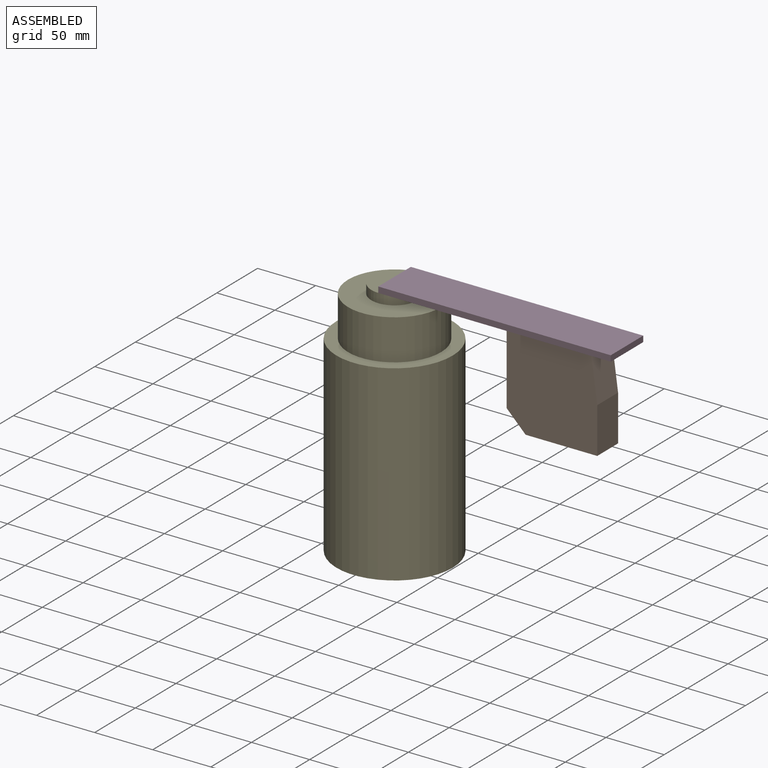
[diagram: assembled view]
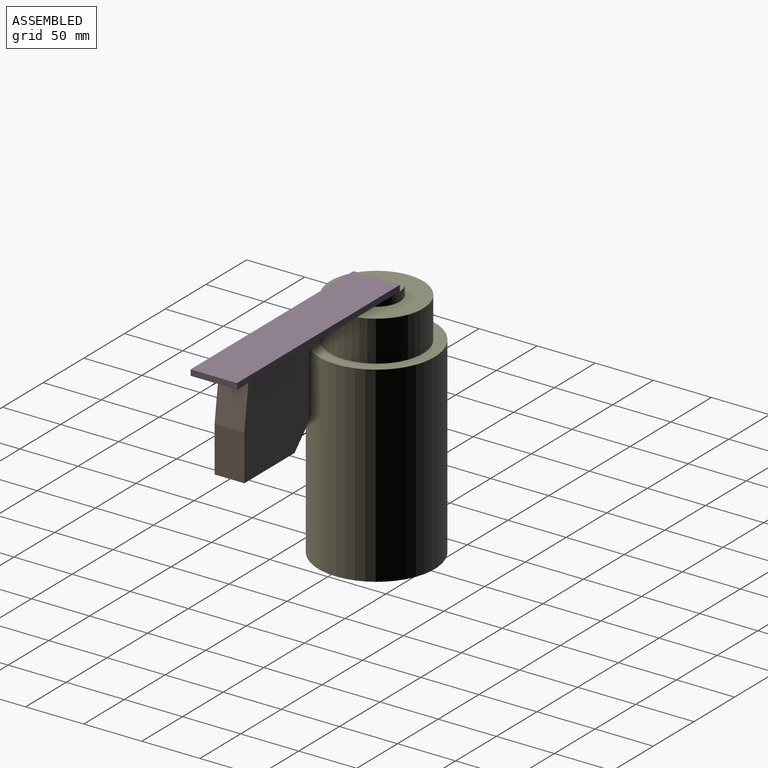
[diagram: assembled view, second angle]
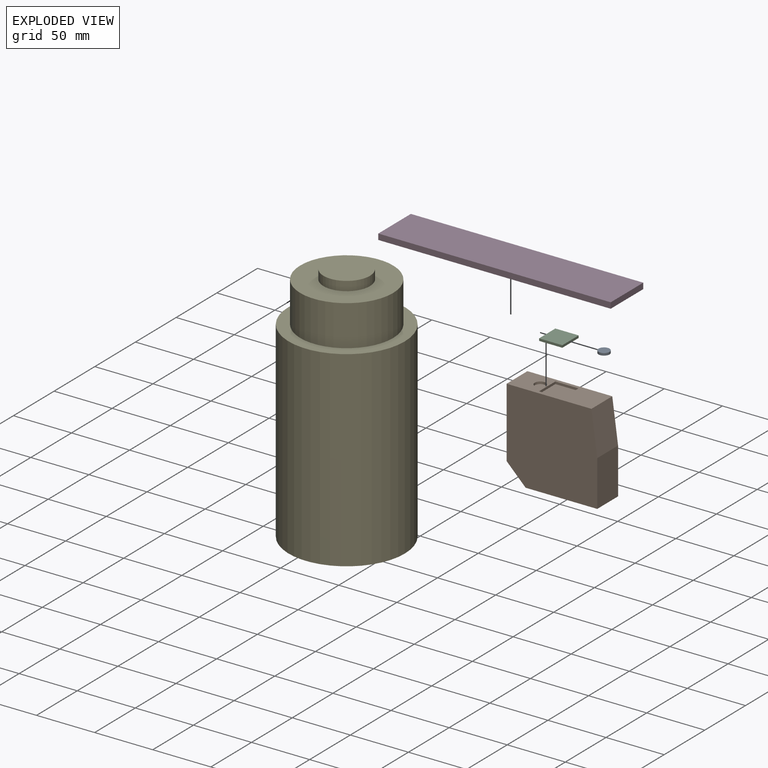
[diagram: exploded view]
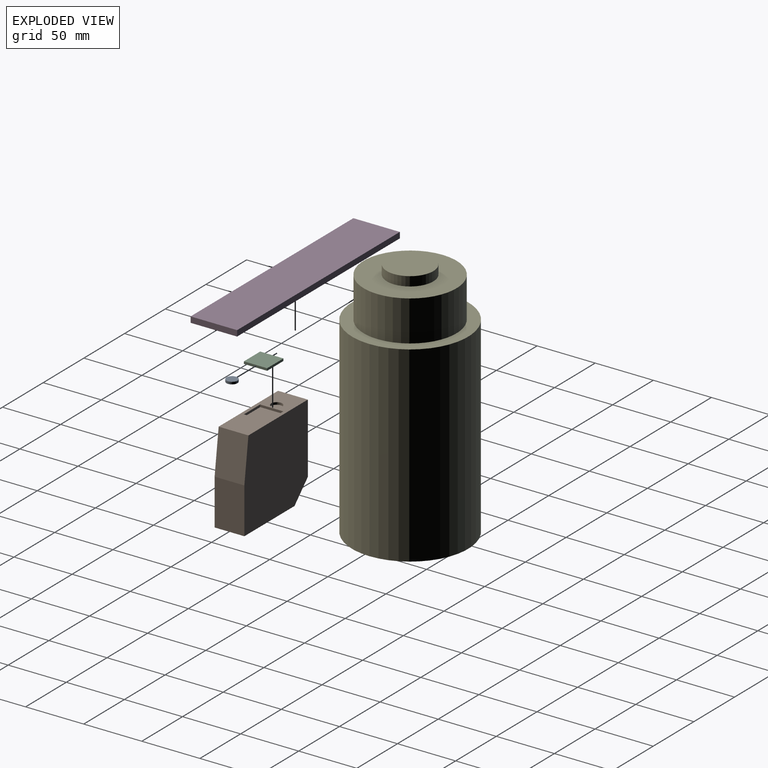
[diagram: exploded view, second angle]
ASSEMBLY  parts=5 mates=3
PART A: 3 faces, bbox 2x9.5x9.5 mm
  f0: plane 9.5x9.5mm, normal (1,0,0), area 70.9mm2, adj f1
  f1: cylinder r=4.75mm len=9.5mm, axis (-1,0,0), area 59.7mm2, adj f0,f2
  f2: plane 9.5x9.5mm, normal (-1,0,0), area 70.9mm2, adj f1
PART B: 15 faces, bbox 76.5x78x25.6 mm
  f0: plane 73x25.6mm, normal (1,0,0), area 1397.9mm2, adj f1,f5,f6,f7,f8,f9,f10,f11
  f1: plane 37x25.6mm, normal (0.13,0.99,0), area 955.8mm2, adj f0,f2,f6,f7
  f2: plane 39.5x25.6mm, normal (0,1,0), area 1011.2mm2, adj f1,f3,f6,f7
  f3: plane 61.63x25.6mm, normal (-1,0,0), area 1577.7mm2, adj f2,f4,f6,f7
  f4: plane 25.6x16.37mm, normal (-0.71,-0.71,0), area 592.7mm2, adj f3,f5,f6,f7
  f5: plane 60.13x25.6mm, normal (0,-1,0), area 1539.3mm2, adj f0,f4,f6,f7
  f6: plane 78x76.5mm, normal (0,0,1), area 5740.5mm2, adj f0,f1,f2,f3,f4,f5
  f7: plane 78x76.5mm, normal (0,0,-1), area 5740.5mm2, adj f0,f1,f2,f3,f4,f5
  f8: plane 20x2mm, normal (0,-1,0), area 40mm2, adj f0,f9,f11,f12
  f9: plane 20x2mm, normal (0,0,-1), area 40mm2, adj f0,f8,f10,f12
  f10: plane 20x2mm, normal (0,1,0), area 40mm2, adj f0,f9,f11,f12
  f11: plane 20x2mm, normal (0,0,1), area 40mm2, adj f0,f8,f10,f12
  f12: plane 20x20mm, normal (1,0,0), area 400mm2, adj f8,f9,f10,f11
  f13: cylinder r=4.75mm len=9.5mm, axis (1,0,0), area 59.7mm2, adj f0,f14
  f14: plane 9.5x9.5mm, normal (1,0,0), area 70.9mm2, adj f13
PART C: 6 faces, bbox 2x20x20 mm
  f0: plane 20x20mm, normal (1,0,0), area 400mm2, adj f1,f3,f4,f5
  f1: plane 20x2mm, normal (0,0,1), area 40mm2, adj f0,f2,f3,f4
  f2: plane 20x20mm, normal (-1,0,0), area 400mm2, adj f1,f3,f4,f5
  f3: plane 20x2mm, normal (0,-1,0), area 40mm2, adj f0,f1,f2,f5
  f4: plane 20x2mm, normal (0,1,0), area 40mm2, adj f0,f1,f2,f5
  f5: plane 20x2mm, normal (0,0,-1), area 40mm2, adj f0,f2,f3,f4
PART D: 6 faces, bbox 200x40x5 mm
  f0: plane 200x5mm, normal (0,1,0), area 1000mm2, adj f1,f3,f4,f5
  f1: plane 40x5mm, normal (-1,0,0), area 200mm2, adj f0,f2,f4,f5
  f2: plane 200x5mm, normal (0,-1,0), area 1000mm2, adj f1,f3,f4,f5
  f3: plane 40x5mm, normal (1,0,0), area 200mm2, adj f0,f2,f4,f5
  f4: plane 200x40mm, normal (0,0,1), area 8000mm2, adj f0,f1,f2,f3
  f5: plane 200x40mm, normal (0,0,-1), area 8000mm2, adj f0,f1,f2,f3
PART E: 7 faces, bbox 100x100x208 mm
  f0: plane 40x40mm, normal (0,0,1), area 1256.6mm2, adj f1
  f1: cylinder r=20mm len=40mm, axis (0,0,1), area 1005.3mm2, adj f0,f2
  f2: plane 80x80mm, normal (0,0,1), area 3769.9mm2, adj f1,f3
  f3: cylinder r=40mm len=80mm, axis (0,0,1), area 8796.5mm2, adj f2,f4
  f4: plane 100x100mm, normal (0,0,1), area 2827.4mm2, adj f3,f5
  f5: cylinder r=50mm len=165mm, axis (0,0,1), area 51836.3mm2, adj f4,f6
  f6: plane 100x100mm, normal (0,0,-1), area 7854mm2, adj f5
PLACE A rot(axis=(-0.58,-0.58,-0.58),120deg) t=(198.98,62.02,90.95)mm
PLACE B rot(axis=(-0.58,-0.58,-0.58),120deg) t=(198.98,62.02,90.95)mm
PLACE C rot(axis=(-0.58,-0.58,-0.58),120deg) t=(198.98,62.02,90.95)mm
PLACE D t=(75.46,60.82,25.88)mm
PLACE E t=(55.46,60.82,25.88)mm
MATE fastened E.f1 <-> D.f5  axis (0,0,1) through (55.46,60.82,133.88)mm
MATE fastened C.f2 <-> B.f12  axis (0,0,-1) through (195.98,62.02,127.2)mm
MATE fastened A.f1 <-> B.f13  axis (0,0,-1) through (179.98,62.02,127.2)mm
